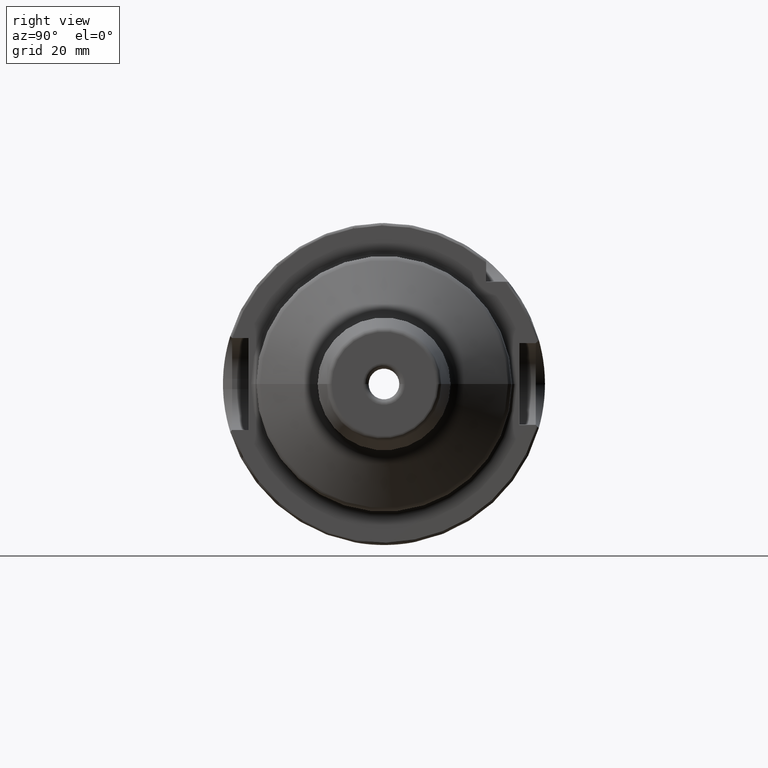
[diagram: clean part render]
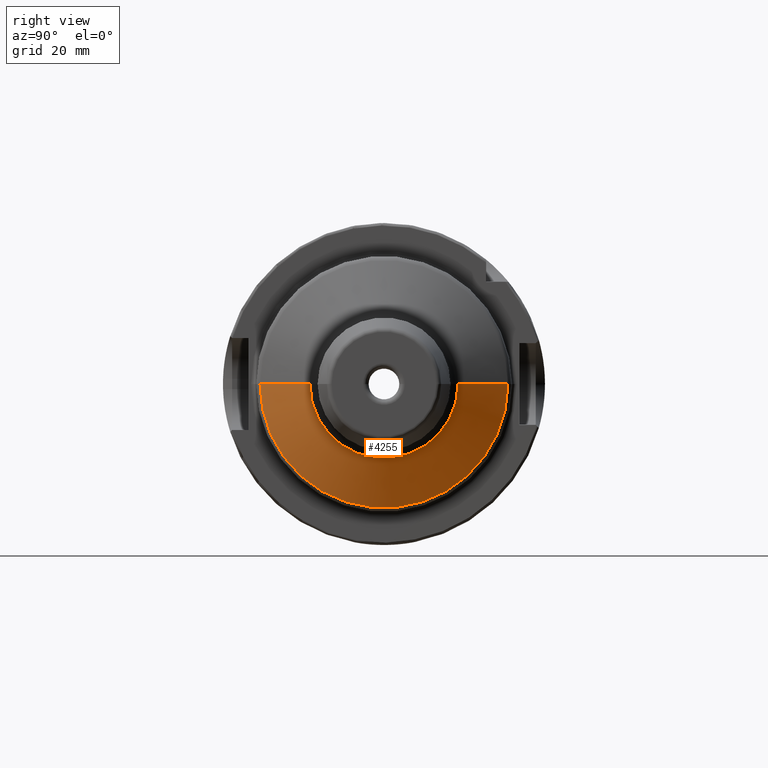
[diagram: same view with one face highlighted and labeled with its STEP entity id]
A machine part, right view. The second image highlights one B-rep face of the part: STEP entity #4255.
In plain terms, the highlighted conical surface has half-angle 60 deg.
Its self-contained STEP definition (entity closure, byte-faithful):
#681=CARTESIAN_POINT('',(4.613397459622E1,0.E0,0.E0));
#682=DIRECTION('',(1.E0,0.E0,0.E0));
#683=DIRECTION('',(0.E0,-1.E0,0.E0));
#684=AXIS2_PLACEMENT_3D('',#681,#682,#683);
#686=DIRECTION('',(-5.E-1,8.660254037844E-1,4.906479996392E-12));
#687=VECTOR('',#686,1.125833024918E1);
#688=CARTESIAN_POINT('',(4.613397459621E1,1.450000000001E1,
-2.131913011421E-12));
#689=LINE('',#688,#687);
#690=CARTESIAN_POINT('',(4.050480947162E1,0.E0,0.E0));
#691=DIRECTION('',(-1.E0,0.E0,0.E0));
#692=DIRECTION('',(0.E0,1.E0,0.E0));
#693=AXIS2_PLACEMENT_3D('',#690,#691,#692);
#695=DIRECTION('',(-5.E-1,-8.660254037844E-1,-4.907443175309E-12));
#696=VECTOR('',#695,1.125833024918E1);
#697=CARTESIAN_POINT('',(4.613397459621E1,-1.450000000001E1,
2.131557442521E-12));
#698=LINE('',#697,#696);
#3257=CARTESIAN_POINT('',(4.050480947162E1,-2.425E1,0.E0));
#3258=CARTESIAN_POINT('',(4.050480947162E1,2.425E1,0.E0));
#3259=VERTEX_POINT('',#3257);
#3260=VERTEX_POINT('',#3258);
#3261=CARTESIAN_POINT('',(4.613397459622E1,1.45E1,0.E0));
#3262=CARTESIAN_POINT('',(4.613397459622E1,-1.45E1,0.E0));
#3263=VERTEX_POINT('',#3261);
#3264=VERTEX_POINT('',#3262);
#4241=CARTESIAN_POINT('',(4.331939203392E1,0.E0,0.E0));
#4242=DIRECTION('',(-1.E0,0.E0,0.E0));
#4243=DIRECTION('',(0.E0,1.E0,0.E0));
#4244=AXIS2_PLACEMENT_3D('',#4241,#4242,#4243);
#4245=CONICAL_SURFACE('',#4244,1.9375E1,6.E1);
#4246=ORIENTED_EDGE('',*,*,#4231,.T.);
#4248=ORIENTED_EDGE('',*,*,#4247,.T.);
#4250=ORIENTED_EDGE('',*,*,#4249,.T.);
#4252=ORIENTED_EDGE('',*,*,#4251,.F.);
#4253=EDGE_LOOP('',(#4246,#4248,#4250,#4252));
#4254=FACE_OUTER_BOUND('',#4253,.F.);
#4255=ADVANCED_FACE('',(#4254),#4245,.T.);
#685=CIRCLE('',#684,1.45E1);
#694=CIRCLE('',#693,2.425E1);
#4231=EDGE_CURVE('',#3264,#3263,#685,.T.);
#4247=EDGE_CURVE('',#3263,#3260,#689,.T.);
#4249=EDGE_CURVE('',#3260,#3259,#694,.T.);
#4251=EDGE_CURVE('',#3264,#3259,#698,.T.);